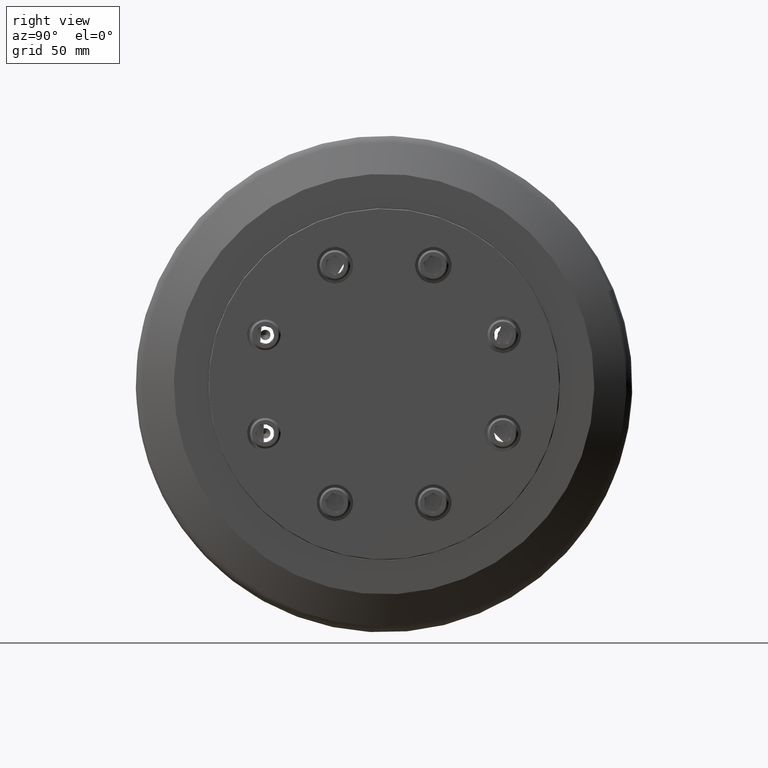
[diagram: clean part render]
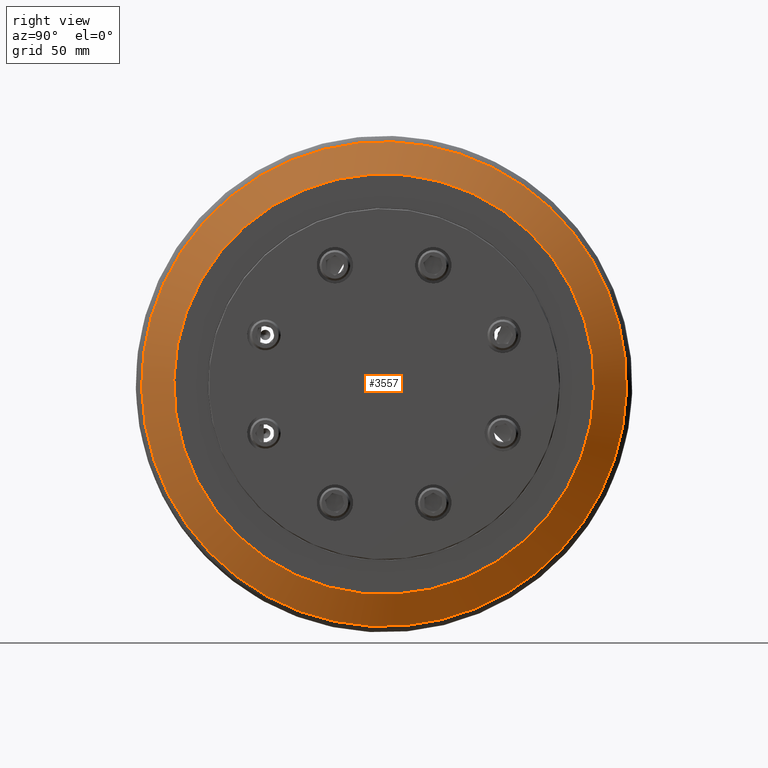
[diagram: same view with one face highlighted and labeled with its STEP entity id]
A machine part, right view. The second image highlights one B-rep face of the part: STEP entity #3557.
In plain terms, the highlighted conical surface has half-angle 60 deg.
Its self-contained STEP definition (entity closure, byte-faithful):
#208=CIRCLE('',#3876,166.);
#209=CIRCLE('',#3877,166.);
#214=CIRCLE('',#3882,166.);
#218=CIRCLE('',#3888,144.);
#219=CIRCLE('',#3889,144.);
#369=CONICAL_SURFACE('',#3887,157.,1.0471975511966);
#490=FACE_OUTER_BOUND('',#695,.T.);
#695=EDGE_LOOP('',(#2671,#2672,#2673,#2674,#2675,#2676,#2677));
#901=LINE('',#5849,#1078);
#1078=VECTOR('',#4624,157.);
#1458=VERTEX_POINT('',#5823);
#1459=VERTEX_POINT('',#5824);
#1460=VERTEX_POINT('',#5826);
#1467=VERTEX_POINT('',#5845);
#1468=VERTEX_POINT('',#5846);
#1903=EDGE_CURVE('',#1458,#1459,#208,.T.);
#1904=EDGE_CURVE('',#1459,#1460,#209,.T.);
#1909=EDGE_CURVE('',#1460,#1458,#214,.T.);
#1914=EDGE_CURVE('',#1467,#1468,#218,.T.);
#1915=EDGE_CURVE('',#1468,#1467,#219,.T.);
#1916=EDGE_CURVE('',#1468,#1459,#901,.T.);
#2671=ORIENTED_EDGE('',*,*,#1914,.F.);
#2672=ORIENTED_EDGE('',*,*,#1915,.F.);
#2673=ORIENTED_EDGE('',*,*,#1916,.T.);
#2674=ORIENTED_EDGE('',*,*,#1903,.F.);
#2675=ORIENTED_EDGE('',*,*,#1909,.F.);
#2676=ORIENTED_EDGE('',*,*,#1904,.F.);
#2677=ORIENTED_EDGE('',*,*,#1916,.F.);
#3557=ADVANCED_FACE('',(#490),#369,.T.);
#3876=AXIS2_PLACEMENT_3D('',#5825,#4595,#4596);
#3877=AXIS2_PLACEMENT_3D('',#5827,#4597,#4598);
#3882=AXIS2_PLACEMENT_3D('',#5835,#4607,#4608);
#3887=AXIS2_PLACEMENT_3D('',#5844,#4618,#4619);
#3888=AXIS2_PLACEMENT_3D('',#5847,#4620,#4621);
#3889=AXIS2_PLACEMENT_3D('',#5848,#4622,#4623);
#4595=DIRECTION('center_axis',(-1.,-1.81734031667709E-16,-7.63915006197908E-17));
#4596=DIRECTION('ref_axis',(-1.02994086430374E-18,-0.382683432365089,0.923879532511287));
#4597=DIRECTION('center_axis',(-1.,-1.81734031667709E-16,-7.63915006197908E-17));
#4598=DIRECTION('ref_axis',(-1.02994086430374E-18,-0.382683432365089,0.923879532511287));
#4607=DIRECTION('center_axis',(-1.,-1.81734031667709E-16,-7.63915006197908E-17));
#4608=DIRECTION('ref_axis',(-1.02994086430374E-18,-0.382683432365089,0.923879532511287));
#4618=DIRECTION('center_axis',(-1.,-2.13376427274458E-16,-1.38050658413677E-30));
#4619=DIRECTION('ref_axis',(-7.23036561126085E-17,0.382683432365089,-0.923879532511287));
#4620=DIRECTION('center_axis',(1.,2.13376427274458E-16,1.38050658413677E-30));
#4621=DIRECTION('ref_axis',(-7.23036561126083E-17,0.382683432365089,-0.923879532511287));
#4622=DIRECTION('center_axis',(1.,2.13376427274458E-16,1.38050658413677E-30));
#4623=DIRECTION('ref_axis',(-7.23036561126083E-17,0.382683432365089,-0.923879532511287));
#4624=DIRECTION('',(-0.5,-0.331413574035592,0.800103145191266));
#5823=CARTESIAN_POINT('',(5.54881817388051,-17.6346959709684,-183.014125679322));
#5824=CARTESIAN_POINT('',(5.54881817388049,-144.685595516178,123.713879114426));
#5825=CARTESIAN_POINT('Origin',(5.54881817388051,-81.1601457435732,-29.650123282448));
#5826=CARTESIAN_POINT('',(5.54881817388047,72.2038566533004,33.8753264901568));
#5827=CARTESIAN_POINT('Origin',(5.54881817388051,-81.1601457435732,-29.650123282448));
#5835=CARTESIAN_POINT('Origin',(5.54881817388051,-81.1601457435732,-29.650123282448));
#5844=CARTESIAN_POINT('Origin',(10.7449705965872,-81.1601457435732,-29.650123282448));
#5845=CARTESIAN_POINT('',(18.2505240960523,-26.0537314830003,-162.688775964073));
#5846=CARTESIAN_POINT('',(18.2505240960523,-136.266560004146,103.388529399177));
#5847=CARTESIAN_POINT('Origin',(18.2505240960523,-81.1601457435732,-29.650123282448));
#5848=CARTESIAN_POINT('Origin',(18.2505240960523,-81.1601457435732,-29.650123282448));
#5849=CARTESIAN_POINT('',(10.7449705965872,-141.241444624892,115.398963321824));